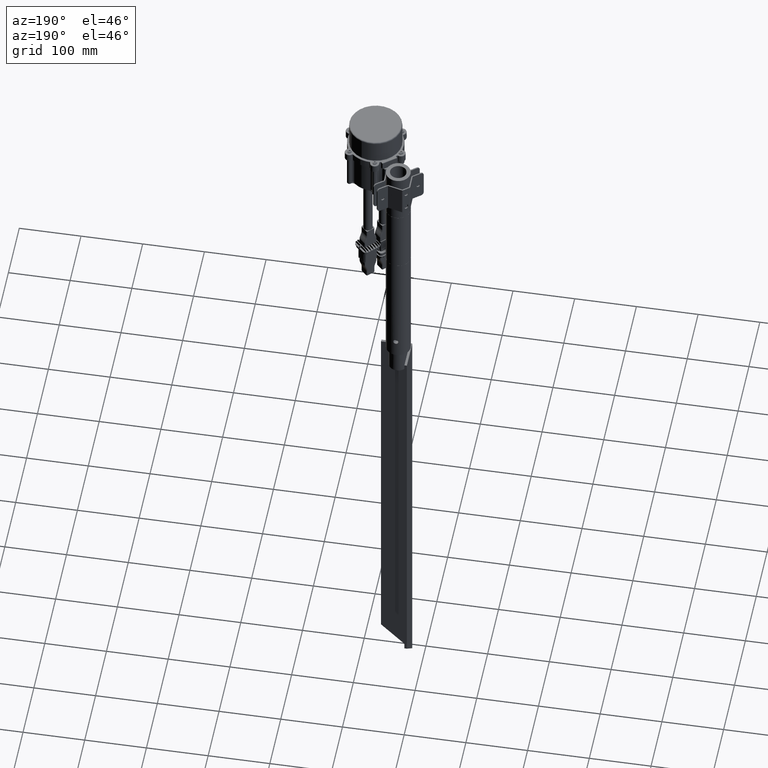
[diagram: clean part render]
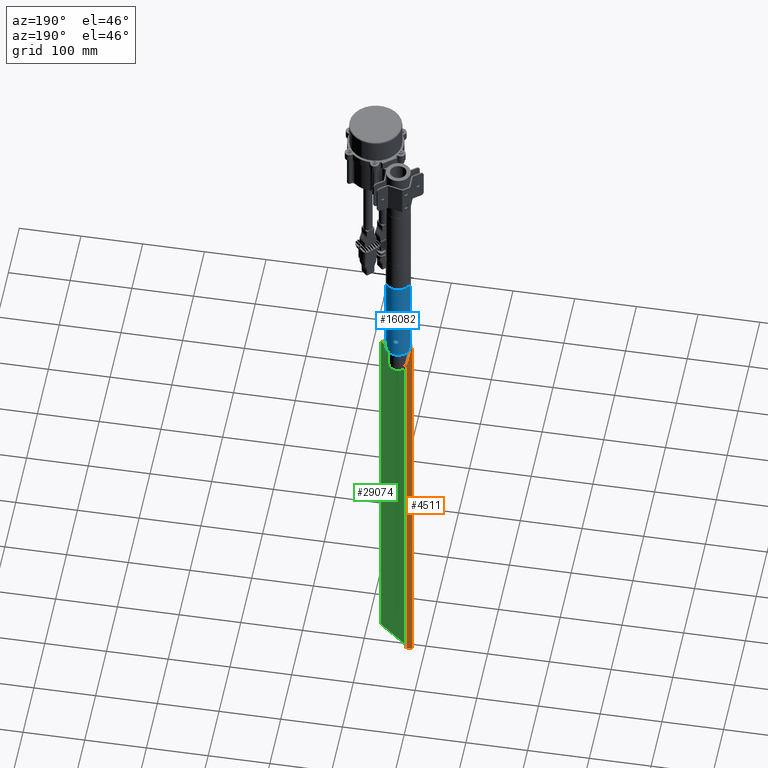
[diagram: same view with three faces highlighted in distinct colors, each labeled with its STEP entity id]
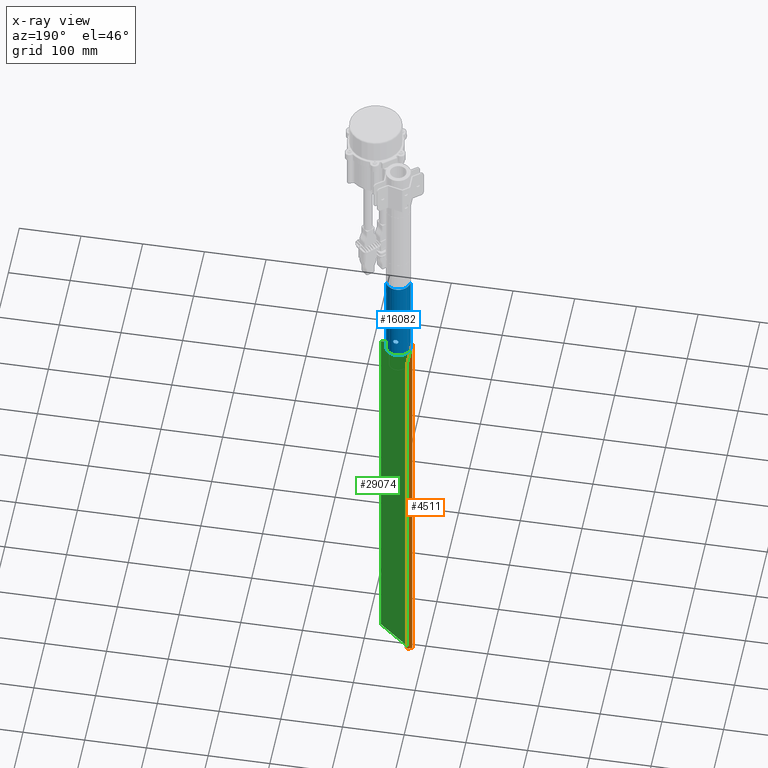
[diagram: x-ray of the same camera — body ghosted, the three highlighted faces saturated]
A machine part, auxiliary view with three faces highlighted in distinct colors.
The next image is the same camera in x-ray (body ghosted, the three faces saturated) — at least one of them is partly hidden behind the body in this view.
Their STEP definitions:

[orange] entity #4511 — the highlighted planar face has unit normal (1, 0, 0).
#1 = EDGE_CURVE ( 'NONE', #22158, #20871, #35321, .T. ) ;
#859 = DIRECTION ( 'NONE',  ( -0.0000000000000000000, -0.0000000000000000000, -1.000000000000000000 ) ) ;
#1697 = DIRECTION ( 'NONE',  ( 1.000000000000000000, 0.0000000000000000000, 0.0000000000000000000 ) ) ;
#2403 = CARTESIAN_POINT ( 'NONE',  ( 0.0000000000000000000, 50.00000000000000700, 50.00000000000000000 ) ) ;
#4098 = FACE_OUTER_BOUND ( 'NONE', #17004, .T. ) ;
#4511 = ADVANCED_FACE ( 'NONE', ( #4098 ), #13442, .F. ) ;
#5006 = CARTESIAN_POINT ( 'NONE',  ( 0.0000000000000000000, 0.0000000000000000000, 700.0000000000000000 ) ) ;
#5468 = VERTEX_POINT ( 'NONE', #2403 ) ;
#6504 = ORIENTED_EDGE ( 'NONE', *, *, #14458, .F. ) ;
#8005 = VERTEX_POINT ( 'NONE', #37871 ) ;
#8628 = LINE ( 'NONE', #21480, #15528 ) ;
#11376 = VECTOR ( 'NONE', #15302, 1000.000000000000100 ) ;
#12763 = CARTESIAN_POINT ( 'NONE',  ( 0.0000000000000000000, 50.00000000000000000, 700.0000000000000000 ) ) ;
#13442 = PLANE ( 'NONE',  #14128 ) ;
#14128 = AXIS2_PLACEMENT_3D ( 'NONE', #28116, #1697, #22339 ) ;
#14458 = EDGE_CURVE ( 'NONE', #8005, #5468, #27035, .T. ) ;
#15302 = DIRECTION ( 'NONE',  ( -0.0000000000000000000, 0.7071067811865474600, 0.7071067811865474600 ) ) ;
#15528 = VECTOR ( 'NONE', #859, 1000.000000000000000 ) ;
#17004 = EDGE_LOOP ( 'NONE', ( #37056, #6504, #17164, #20489 ) ) ;
#17164 = ORIENTED_EDGE ( 'NONE', *, *, #33295, .F. ) ;
#19251 = LINE ( 'NONE', #12763, #27062 ) ;
#20489 = ORIENTED_EDGE ( 'NONE', *, *, #1, .F. ) ;
#20720 = DIRECTION ( 'NONE',  ( -0.0000000000000000000, -1.000000000000000000, -0.0000000000000000000 ) ) ;
#20845 = CARTESIAN_POINT ( 'NONE',  ( 0.0000000000000000000, 0.0000000000000000000, 700.0000000000000000 ) ) ;
#20871 = VERTEX_POINT ( 'NONE', #5006 ) ;
#21480 = CARTESIAN_POINT ( 'NONE',  ( 0.0000000000000000000, 0.0000000000000000000, 700.0000000000000000 ) ) ;
#22158 = VERTEX_POINT ( 'NONE', #32733 ) ;
#22339 = DIRECTION ( 'NONE',  ( 0.0000000000000000000, 0.0000000000000000000, -1.000000000000000000 ) ) ;
#26342 = EDGE_CURVE ( 'NONE', #22158, #5468, #19251, .T. ) ;
#27035 = LINE ( 'NONE', #35855, #11376 ) ;
#27062 = VECTOR ( 'NONE', #30375, 1000.000000000000000 ) ;
#27477 = VECTOR ( 'NONE', #20720, 1000.000000000000000 ) ;
#28116 = CARTESIAN_POINT ( 'NONE',  ( 0.0000000000000000000, 0.0000000000000000000, 700.0000000000000000 ) ) ;
#30375 = DIRECTION ( 'NONE',  ( -0.0000000000000000000, -0.0000000000000000000, -1.000000000000000000 ) ) ;
#32733 = CARTESIAN_POINT ( 'NONE',  ( 0.0000000000000000000, 50.00000000000000000, 700.0000000000000000 ) ) ;
#33295 = EDGE_CURVE ( 'NONE', #20871, #8005, #8628, .T. ) ;
#35321 = LINE ( 'NONE', #20845, #27477 ) ;
#35855 = CARTESIAN_POINT ( 'NONE',  ( 0.0000000000000000000, 50.00000000000000700, 50.00000000000000000 ) ) ;
#37056 = ORIENTED_EDGE ( 'NONE', *, *, #26342, .T. ) ;
#37871 = CARTESIAN_POINT ( 'NONE',  ( 0.0000000000000000000, 0.0000000000000000000, 0.0000000000000000000 ) ) ;

[blue] entity #16082 — the highlighted cylindrical surface (edge-blend (fillet) strip) has radius 20 mm, axis along (-0, 0, -1).
#457 = CARTESIAN_POINT ( 'NONE',  ( -0.5518720823967746500, 19.99419648656537900, 34.17260632677036400 ) ) ;
#594 = CARTESIAN_POINT ( 'NONE',  ( -4.173073762568107800, 19.55986981503911100, 30.54951977811594000 ) ) ;
#721 = CARTESIAN_POINT ( 'NONE',  ( -1.862887576433846200, 19.91468012257299600, 26.22572578509388200 ) ) ;
#1107 = EDGE_CURVE ( 'NONE', #16694, #27925, #36572, .T. ) ;
#1511 = CARTESIAN_POINT ( 'NONE',  ( 1.861490608868710400, 19.91479825350306900, 26.22511422665705500 ) ) ;
#1633 = CARTESIAN_POINT ( 'NONE',  ( 4.173073512967136800, 19.55986808386858700, 30.54844857985792900 ) ) ;
#1761 = CARTESIAN_POINT ( 'NONE',  ( 0.5528406535147854000, 19.99419679058095800, 34.17261522619427400 ) ) ;
#1850 = DIRECTION ( 'NONE',  ( 0.0000000000000000000, 0.0000000000000000000, 1.000000000000000000 ) ) ;
#1948 = ORIENTED_EDGE ( 'NONE', *, *, #1107, .F. ) ;
#2549 = B_SPLINE_CURVE_WITH_KNOTS ( 'NONE', 3,
 ( #32743, #12192, #457, #21099, #3411, #24027, #6383, #26995, #9338, #29923, #12322, #32873, #15292, #35850, #18265, #594, #21212, #3539, #24148, #6505, #27114, #9464, #30053, #12437, #33001, #15421, #35968, #18391, #721, #21334, #3657, #24283, #6628, #27232 ),
 .UNSPECIFIED., .F., .F.,
 ( 4, 2, 2, 2, 2, 2, 2, 2, 2, 2, 2, 2, 2, 2, 2, 2, 4 ),
 ( 9.042208671597768500E-019, 0.0008229896707890212200, 0.001645979341578041600, 0.002468969012367061900, 0.003291958683156082300, 0.004114948353945102600, 0.004937938024734123000, 0.005760927695523143300, 0.006583917366312163700, 0.007406907037101184000, 0.008229896707890205200, 0.009052886378679224700, 0.009875876049468245900, 0.01069886572025726700, 0.01152185539104628700, 0.01234484506183530600, 0.01316783473262432700 ),
 .UNSPECIFIED. ) ;
#2748 = VERTEX_POINT ( 'NONE', #28898 ) ;
#3274 = AXIS2_PLACEMENT_3D ( 'NONE', #19539, #1850, #22493 ) ;
#3411 = CARTESIAN_POINT ( 'NONE',  ( -1.356976831066771100, 19.95554137041529000, 33.98426340179674600 ) ) ;
#3539 = CARTESIAN_POINT ( 'NONE',  ( -4.200108778611418200, 19.55400435359176500, 29.72687047538479300 ) ) ;
#3657 = CARTESIAN_POINT ( 'NONE',  ( -1.093420486391702100, 19.97191712390264900, 25.93548719834731700 ) ) ;
#3690 = EDGE_CURVE ( 'NONE', #14082, #32131, #9710, .T. ) ;
#4486 = CARTESIAN_POINT ( 'NONE',  ( 2.563687760922375600, 19.83634061902229500, 26.66188087817691600 ) ) ;
#4608 = CARTESIAN_POINT ( 'NONE',  ( 3.984971638402676800, 19.59927255651121000, 31.35475609599886600 ) ) ;
#4613 = CARTESIAN_POINT ( 'NONE',  ( 20.00000000000000000, 2.449293598294706500E-015, 150.0000000000000300 ) ) ;
#4742 = CARTESIAN_POINT ( 'NONE',  ( 9.308365541700179300E-016, 20.00000000000000000, 34.20000000000000300 ) ) ;
#4767 = B_SPLINE_CURVE_WITH_KNOTS ( 'NONE', 3,
 ( #13243, #30845, #16200, #36766, #19184, #1511, #22146, #4486, #25089, #7438, #28057, #10392, #30987, #13375, #33939, #16339, #36892, #19323, #1633, #22287, #4608, #25222, #7572, #28192, #10530, #31115, #13513, #34065, #16469, #37027, #19448, #1761, #22403, #4742 ),
 .UNSPECIFIED., .F., .F.,
 ( 4, 2, 2, 2, 2, 2, 2, 2, 2, 2, 2, 2, 2, 2, 2, 2, 4 ),
 ( 0.01316783473262432700, 0.01399060964804361500, 0.01481338456346290200, 0.01563615947888218800, 0.01645893439430147500, 0.01728170930972076200, 0.01810448422514005000, 0.01892725914055933700, 0.01975003405597862400, 0.02057280897139791100, 0.02139558388681719900, 0.02221835880223648300, 0.02304113371765576700, 0.02386390863307505400, 0.02468668354849434100, 0.02550945846391362800, 0.02633223337933291600 ),
 .UNSPECIFIED. ) ;
#6383 = CARTESIAN_POINT ( 'NONE',  ( -2.106248871028048300, 19.89010853751019100, 33.64402706649399000 ) ) ;
#6505 = CARTESIAN_POINT ( 'NONE',  ( -4.064964631846025100, 19.58262205852378900, 28.90836496294286600 ) ) ;
#6628 = CARTESIAN_POINT ( 'NONE',  ( -0.2745390965992292000, 20.00000000000000400, 25.79999999999999700 ) ) ;
#7011 = DIRECTION ( 'NONE',  ( -0.0000000000000000000, -0.0000000000000000000, -1.000000000000000000 ) ) ;
#7438 = CARTESIAN_POINT ( 'NONE',  ( 3.161920558549819100, 19.74944587354189100, 27.22201585688233300 ) ) ;
#7572 = CARTESIAN_POINT ( 'NONE',  ( 3.645917826818177300, 19.66548540220053500, 32.10306378507974800 ) ) ;
#8826 = VECTOR ( 'NONE', #35146, 1000.000000000000000 ) ;
#9338 = CARTESIAN_POINT ( 'NONE',  ( -2.777525012803538500, 19.80715734486932800, 33.16227226977982000 ) ) ;
#9464 = CARTESIAN_POINT ( 'NONE',  ( -3.774140768395597900, 19.64096362660108500, 28.13669472732837900 ) ) ;
#9710 = LINE ( 'NONE', #17549, #8826 ) ;
#10035 = EDGE_CURVE ( 'NONE', #34592, #2748, #2549, .T. ) ;
#10392 = CARTESIAN_POINT ( 'NONE',  ( 3.642841742020647400, 19.66605026226151100, 27.89181917407363900 ) ) ;
#10449 = EDGE_CURVE ( 'NONE', #2748, #34592, #4767, .T. ) ;
#10518 = ORIENTED_EDGE ( 'NONE', *, *, #10035, .T. ) ;
#10530 = CARTESIAN_POINT ( 'NONE',  ( 3.164551635925969600, 19.74901596392046000, 32.77489925709987500 ) ) ;
#11103 = CARTESIAN_POINT ( 'NONE',  ( 0.0000000000000000000, 0.0000000000000000000, 150.0000000000000300 ) ) ;
#11833 = EDGE_LOOP ( 'NONE', ( #10518, #35697 ) ) ;
#12098 = AXIS2_PLACEMENT_3D ( 'NONE', #11103, #31680, #14088 ) ;
#12192 = CARTESIAN_POINT ( 'NONE',  ( -0.2783380511143904700, 19.99999999999999600, 34.20000000000000300 ) ) ;
#12322 = CARTESIAN_POINT ( 'NONE',  ( -3.337282877563797700, 19.72021423128903100, 32.56490890376445400 ) ) ;
#12437 = CARTESIAN_POINT ( 'NONE',  ( -3.339193164920370100, 19.71987777117194100, 27.43788930395934100 ) ) ;
#13243 = CARTESIAN_POINT ( 'NONE',  ( 4.188292898292406800E-015, 20.00000000000000000, 25.79999999999999700 ) ) ;
#13375 = CARTESIAN_POINT ( 'NONE',  ( 3.984101755403648900, 19.59945418065239100, 28.64237943728150200 ) ) ;
#13513 = CARTESIAN_POINT ( 'NONE',  ( 2.567297225680592400, 19.83588918349391200, 33.33548442241741600 ) ) ;
#14082 = VERTEX_POINT ( 'NONE', #4613 ) ;
#14088 = DIRECTION ( 'NONE',  ( 1.000000000000000000, 0.0000000000000000000, 0.0000000000000000000 ) ) ;
#15292 = CARTESIAN_POINT ( 'NONE',  ( -3.774252074308327700, 19.64093787567629300, 31.86273790123826500 ) ) ;
#15421 = CARTESIAN_POINT ( 'NONE',  ( -2.774427515353557800, 19.80761144543596000, 26.83477368699600900 ) ) ;
#16082 = ADVANCED_FACE ( 'NONE', ( #19159, #35709 ), #33851, .T. ) ;
#16200 = CARTESIAN_POINT ( 'NONE',  ( 0.5478180382495974100, 19.99435200588668600, 25.82664120330885300 ) ) ;
#16339 = CARTESIAN_POINT ( 'NONE',  ( 4.172175893427454900, 19.56006034836714100, 29.44504325435212500 ) ) ;
#16469 = CARTESIAN_POINT ( 'NONE',  ( 1.866512879255001400, 19.91432480769762100, 33.77239515835257300 ) ) ;
#16694 = VERTEX_POINT ( 'NONE', #35947 ) ;
#16879 = CARTESIAN_POINT ( 'NONE',  ( 9.308365541700179300E-016, 20.00000000000000000, 34.20000000000000300 ) ) ;
#17376 = ORIENTED_EDGE ( 'NONE', *, *, #27341, .F. ) ;
#17549 = CARTESIAN_POINT ( 'NONE',  ( 20.00000000000000000, 2.449293598294706500E-015, 400.0000000000000000 ) ) ;
#17918 = ORIENTED_EDGE ( 'NONE', *, *, #22304, .T. ) ;
#18265 = CARTESIAN_POINT ( 'NONE',  ( -4.064955966322117800, 19.58262456365271500, 31.09208498123413000 ) ) ;
#18391 = CARTESIAN_POINT ( 'NONE',  ( -2.108888380588233700, 19.88981880880026100, 26.35757137026723000 ) ) ;
#19159 = FACE_BOUND ( 'NONE', #11833, .T. ) ;
#19184 = CARTESIAN_POINT ( 'NONE',  ( 1.355840385163133500, 19.95560155982765200, 26.01545401097515500 ) ) ;
#19323 = CARTESIAN_POINT ( 'NONE',  ( 4.200128849857164500, 19.55400004249999000, 30.27528077194391500 ) ) ;
#19448 = CARTESIAN_POINT ( 'NONE',  ( 1.094738525459737300, 19.97185734100689200, 34.06422171822861600 ) ) ;
#19539 = CARTESIAN_POINT ( 'NONE',  ( 0.0000000000000000000, 0.0000000000000000000, 0.0000000000000000000 ) ) ;
#19735 = CARTESIAN_POINT ( 'NONE',  ( -20.00000000000000000, 0.0000000000000000000, 0.0000000000000000000 ) ) ;
#20083 = VECTOR ( 'NONE', #22342, 1000.000000000000000 ) ;
#21099 = CARTESIAN_POINT ( 'NONE',  ( -1.089771314802165500, 19.97210190290812900, 34.06541570260252900 ) ) ;
#21212 = CARTESIAN_POINT ( 'NONE',  ( -4.199890559246247400, 19.55405122481805300, 30.27646478933032300 ) ) ;
#21334 = CARTESIAN_POINT ( 'NONE',  ( -1.355286002329636900, 19.95565168965235600, 26.01519187116542000 ) ) ;
#22146 = CARTESIAN_POINT ( 'NONE',  ( 2.106816570671456600, 19.89005349482302200, 26.35625767314313700 ) ) ;
#22287 = CARTESIAN_POINT ( 'NONE',  ( 4.066200111219911800, 19.58236448078944400, 31.08690158013098100 ) ) ;
#22304 = EDGE_CURVE ( 'NONE', #32131, #27925, #36126, .T. ) ;
#22342 = DIRECTION ( 'NONE',  ( -0.0000000000000000000, -0.0000000000000000000, -1.000000000000000000 ) ) ;
#22403 = CARTESIAN_POINT ( 'NONE',  ( 0.2782654200800048200, 20.00000000000000000, 34.20000000000001700 ) ) ;
#22493 = DIRECTION ( 'NONE',  ( 1.000000000000000000, 0.0000000000000000000, 0.0000000000000000000 ) ) ;
#24027 = CARTESIAN_POINT ( 'NONE',  ( -1.865290054462114300, 19.91445983498254100, 33.77311992754982800 ) ) ;
#24148 = CARTESIAN_POINT ( 'NONE',  ( -4.172591554658764000, 19.55997198012133300, 29.44765569589234000 ) ) ;
#24209 = CIRCLE ( 'NONE', #12098, 20.00000000000000000 ) ;
#24283 = CARTESIAN_POINT ( 'NONE',  ( -0.5533532157932982100, 19.99417020490393800, 25.82751478211955000 ) ) ;
#24478 = ORIENTED_EDGE ( 'NONE', *, *, #3690, .T. ) ;
#24660 = CARTESIAN_POINT ( 'NONE',  ( 0.0000000000000000000, 0.0000000000000000000, 400.0000000000000000 ) ) ;
#25089 = CARTESIAN_POINT ( 'NONE',  ( 2.774575039624480600, 19.80757651203280300, 26.83508754189219300 ) ) ;
#25222 = CARTESIAN_POINT ( 'NONE',  ( 3.774719056171039500, 19.64084977159252800, 31.86195034453097500 ) ) ;
#25627 = EDGE_LOOP ( 'NONE', ( #17376, #24478, #17918, #1948 ) ) ;
#26465 = AXIS2_PLACEMENT_3D ( 'NONE', #24660, #7011, #30554 ) ;
#26995 = CARTESIAN_POINT ( 'NONE',  ( -2.562249070927306200, 19.83652140974255900, 33.33917613590236300 ) ) ;
#27114 = CARTESIAN_POINT ( 'NONE',  ( -3.985370952293800300, 19.59919409296579600, 28.64616712573360900 ) ) ;
#27232 = CARTESIAN_POINT ( 'NONE',  ( 4.188292898292406800E-015, 20.00000000000000000, 25.79999999999999700 ) ) ;
#27341 = EDGE_CURVE ( 'NONE', #14082, #16694, #24209, .T. ) ;
#27925 = VERTEX_POINT ( 'NONE', #19735 ) ;
#28057 = CARTESIAN_POINT ( 'NONE',  ( 3.338848791572818900, 19.71993705928639100, 27.43742100624696400 ) ) ;
#28192 = CARTESIAN_POINT ( 'NONE',  ( 3.340632898342828400, 19.71964007639547800, 32.56042299679842200 ) ) ;
#28262 = CARTESIAN_POINT ( 'NONE',  ( -20.00000000000000000, 0.0000000000000000000, 400.0000000000000000 ) ) ;
#28898 = CARTESIAN_POINT ( 'NONE',  ( 4.188292898292406800E-015, 20.00000000000000000, 25.79999999999999700 ) ) ;
#29923 = CARTESIAN_POINT ( 'NONE',  ( -3.163717384922481100, 19.74915237648186300, 32.77587885422021000 ) ) ;
#30053 = CARTESIAN_POINT ( 'NONE',  ( -3.642939369713123800, 19.66603119724990400, 27.89201163190803400 ) ) ;
#30554 = DIRECTION ( 'NONE',  ( -1.000000000000000000, 0.0000000000000000000, 0.0000000000000000000 ) ) ;
#30845 = CARTESIAN_POINT ( 'NONE',  ( 0.2744674568845620300, 19.99999999999999600, 25.80000000000000100 ) ) ;
#30987 = CARTESIAN_POINT ( 'NONE',  ( 3.772138045308474300, 19.64135040021533400, 28.13260208930639200 ) ) ;
#31115 = CARTESIAN_POINT ( 'NONE',  ( 2.778913330987657000, 19.80695987016901700, 33.16102730806841200 ) ) ;
#31680 = DIRECTION ( 'NONE',  ( 0.0000000000000000000, 0.0000000000000000000, 1.000000000000000000 ) ) ;
#32131 = VERTEX_POINT ( 'NONE', #37305 ) ;
#32743 = CARTESIAN_POINT ( 'NONE',  ( 9.308365541700179300E-016, 20.00000000000000000, 34.20000000000000300 ) ) ;
#32873 = CARTESIAN_POINT ( 'NONE',  ( -3.644306406445800800, 19.66579103796114200, 32.10600225674826200 ) ) ;
#33001 = CARTESIAN_POINT ( 'NONE',  ( -3.164613277795753600, 19.74902888785459600, 27.22487325469942800 ) ) ;
#33851 = CYLINDRICAL_SURFACE ( 'NONE', #26465, 20.00000000000000000 ) ;
#33939 = CARTESIAN_POINT ( 'NONE',  ( 4.064755719125386700, 19.58266512661898400, 28.90785091719366300 ) ) ;
#34065 = CARTESIAN_POINT ( 'NONE',  ( 2.107803092557883200, 19.88996432545421900, 33.64330035821643600 ) ) ;
#34592 = VERTEX_POINT ( 'NONE', #16879 ) ;
#35146 = DIRECTION ( 'NONE',  ( -0.0000000000000000000, -0.0000000000000000000, -1.000000000000000000 ) ) ;
#35697 = ORIENTED_EDGE ( 'NONE', *, *, #10449, .T. ) ;
#35709 = FACE_OUTER_BOUND ( 'NONE', #25627, .T. ) ;
#35850 = CARTESIAN_POINT ( 'NONE',  ( -3.983916382603969200, 19.59948544255731300, 31.35763819390512800 ) ) ;
#35947 = CARTESIAN_POINT ( 'NONE',  ( -20.00000000000000000, 0.0000000000000000000, 150.0000000000000300 ) ) ;
#35968 = CARTESIAN_POINT ( 'NONE',  ( -2.563152241000632400, 19.83639465825728400, 26.66159512432502500 ) ) ;
#36126 = CIRCLE ( 'NONE', #3274, 20.00000000000000000 ) ;
#36572 = LINE ( 'NONE', #28262, #20083 ) ;
#36766 = CARTESIAN_POINT ( 'NONE',  ( 1.092214860408399900, 19.97201250342687800, 25.93501599662999300 ) ) ;
#36892 = CARTESIAN_POINT ( 'NONE',  ( 4.199870236491767300, 19.55405558993126600, 29.72080140502662000 ) ) ;
#37027 = CARTESIAN_POINT ( 'NONE',  ( 1.361399914003745400, 19.95521969683762700, 33.98264056039925400 ) ) ;
#37305 = CARTESIAN_POINT ( 'NONE',  ( 20.00000000000000000, 2.449293598294706500E-015, 0.0000000000000000000 ) ) ;

[green] entity #29074 — the highlighted planar face has unit normal (0, -1, 0).
#962 = ORIENTED_EDGE ( 'NONE', *, *, #14804, .T. ) ;
#1670 = CARTESIAN_POINT ( 'NONE',  ( 4.000000000000000000, 4.000000000000000000, 700.0000000000000000 ) ) ;
#1689 = DIRECTION ( 'NONE',  ( 0.0000000000000000000, -1.000000000000000000, 0.0000000000000000000 ) ) ;
#4237 = VECTOR ( 'NONE', #15348, 1000.000000000000000 ) ;
#4928 = VECTOR ( 'NONE', #31148, 1000.000000000000000 ) ;
#5277 = VERTEX_POINT ( 'NONE', #10272 ) ;
#6764 = LINE ( 'NONE', #1670, #4928 ) ;
#7494 = PLANE ( 'NONE',  #8226 ) ;
#8226 = AXIS2_PLACEMENT_3D ( 'NONE', #13301, #1689, #22329 ) ;
#10272 = CARTESIAN_POINT ( 'NONE',  ( 4.000000000000000000, 4.000000000000000000, 4.000000000000003600 ) ) ;
#10335 = CARTESIAN_POINT ( 'NONE',  ( 4.000000000000000000, 4.000000000000000000, 700.0000000000000000 ) ) ;
#10485 = VECTOR ( 'NONE', #16958, 1000.000000000000000 ) ;
#10505 = VERTEX_POINT ( 'NONE', #25609 ) ;
#13301 = CARTESIAN_POINT ( 'NONE',  ( 4.000000000000000000, 4.000000000000000000, 700.0000000000000000 ) ) ;
#14804 = EDGE_CURVE ( 'NONE', #28011, #10505, #32128, .T. ) ;
#15348 = DIRECTION ( 'NONE',  ( -0.0000000000000000000, -0.0000000000000000000, -1.000000000000000000 ) ) ;
#15859 = LINE ( 'NONE', #18892, #22799 ) ;
#16958 = DIRECTION ( 'NONE',  ( -0.0000000000000000000, -0.0000000000000000000, -1.000000000000000000 ) ) ;
#18582 = EDGE_LOOP ( 'NONE', ( #23089, #34159, #25727, #962 ) ) ;
#18892 = CARTESIAN_POINT ( 'NONE',  ( 352.0000000000000000, 4.000000000000000000, 352.0000000000000000 ) ) ;
#22329 = DIRECTION ( 'NONE',  ( 0.0000000000000000000, -0.0000000000000000000, -1.000000000000000000 ) ) ;
#22799 = VECTOR ( 'NONE', #36461, 1000.000000000000100 ) ;
#23089 = ORIENTED_EDGE ( 'NONE', *, *, #36586, .F. ) ;
#23968 = VERTEX_POINT ( 'NONE', #10335 ) ;
#24069 = FACE_OUTER_BOUND ( 'NONE', #18582, .T. ) ;
#24529 = LINE ( 'NONE', #29976, #4237 ) ;
#25609 = CARTESIAN_POINT ( 'NONE',  ( 50.00000000000000700, 4.000000000000000000, 50.00000000000000000 ) ) ;
#25727 = ORIENTED_EDGE ( 'NONE', *, *, #26513, .F. ) ;
#26513 = EDGE_CURVE ( 'NONE', #28011, #23968, #6764, .T. ) ;
#28011 = VERTEX_POINT ( 'NONE', #31891 ) ;
#29074 = ADVANCED_FACE ( 'NONE', ( #24069 ), #7494, .F. ) ;
#29976 = CARTESIAN_POINT ( 'NONE',  ( 4.000000000000000000, 4.000000000000000000, 700.0000000000000000 ) ) ;
#31148 = DIRECTION ( 'NONE',  ( -1.000000000000000000, -0.0000000000000000000, -0.0000000000000000000 ) ) ;
#31891 = CARTESIAN_POINT ( 'NONE',  ( 50.00000000000000000, 4.000000000000000000, 700.0000000000000000 ) ) ;
#32128 = LINE ( 'NONE', #34549, #10485 ) ;
#34159 = ORIENTED_EDGE ( 'NONE', *, *, #35891, .F. ) ;
#34549 = CARTESIAN_POINT ( 'NONE',  ( 50.00000000000000000, 4.000000000000000000, 700.0000000000000000 ) ) ;
#35891 = EDGE_CURVE ( 'NONE', #23968, #5277, #24529, .T. ) ;
#36461 = DIRECTION ( 'NONE',  ( 0.7071067811865474600, 0.0000000000000000000, 0.7071067811865474600 ) ) ;
#36586 = EDGE_CURVE ( 'NONE', #5277, #10505, #15859, .T. ) ;